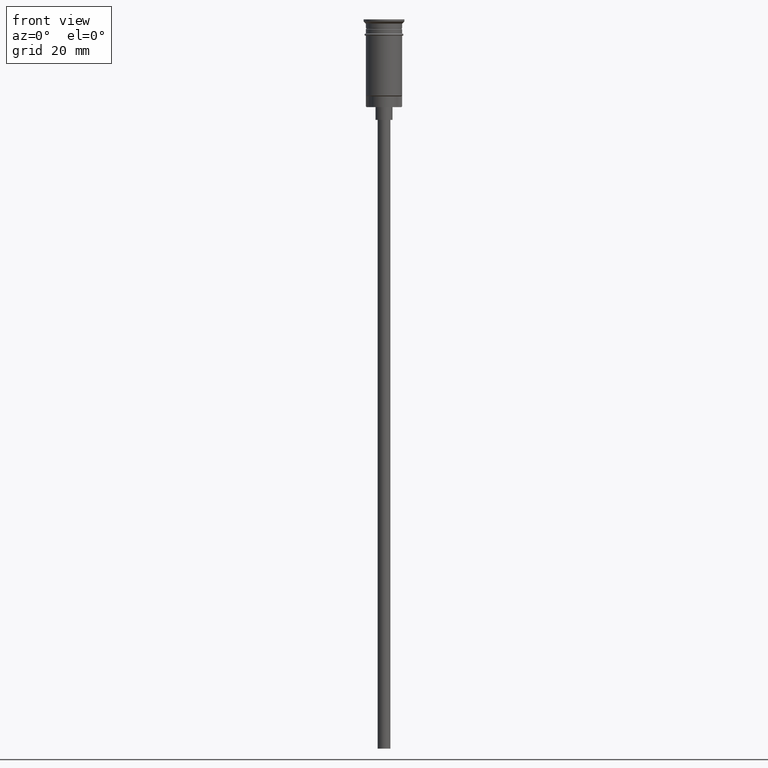
[diagram: clean part render]
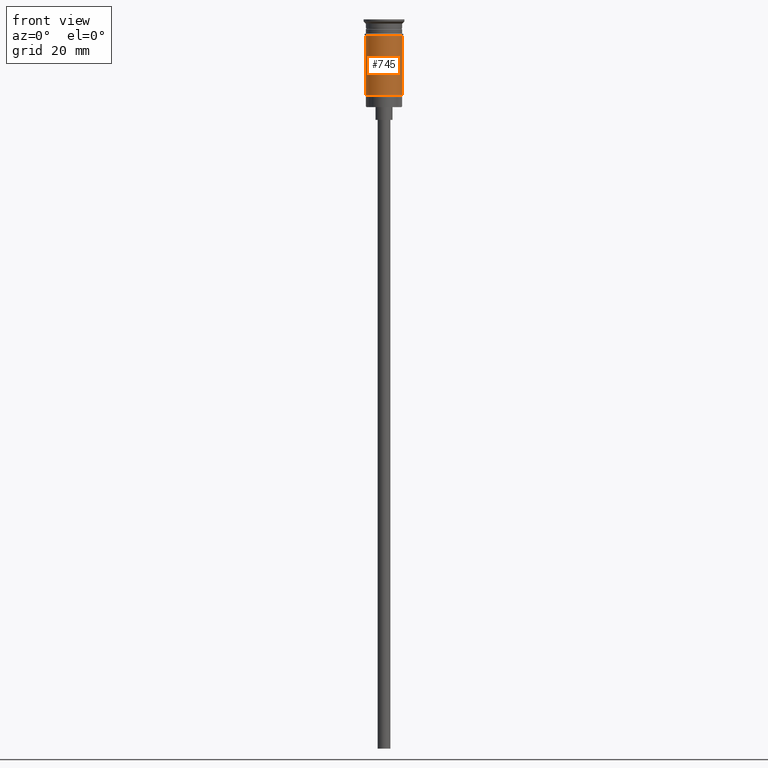
[diagram: same view with one face highlighted and labeled with its STEP entity id]
A machine part, front view. The second image highlights one B-rep face of the part: STEP entity #745.
In plain terms, the highlighted cylindrical surface (edge-blend (fillet) strip) has radius 4.25 mm, axis along (-0, -0, 1).
Its self-contained STEP definition (entity closure, byte-faithful):
#2 = DIRECTION ( 'NONE',  ( -0.000000000000000000, -0.000000000000000000, 1.000000000000000000 ) ) ;
#5 = DIRECTION ( 'NONE',  ( -0.000000000000000000, -0.000000000000000000, 1.000000000000000000 ) ) ;
#16 = AXIS2_PLACEMENT_3D ( 'NONE', #1269, #355, #1024 ) ;
#105 = VERTEX_POINT ( 'NONE', #1572 ) ;
#129 = ORIENTED_EDGE ( 'NONE', *, *, #465, .T. ) ;
#150 = ORIENTED_EDGE ( 'NONE', *, *, #300, .T. ) ;
#170 = CARTESIAN_POINT ( 'NONE',  ( -4.249999999999994671, 0.000000000000000000, -17.80000000000000071 ) ) ;
#282 = CARTESIAN_POINT ( 'NONE',  ( 4.249999999999996447, 0.000000000000000000, 0.000000000000000000 ) ) ;
#300 = EDGE_CURVE ( 'NONE', #1590, #105, #1400, .T. ) ;
#321 = VERTEX_POINT ( 'NONE', #170 ) ;
#327 = CARTESIAN_POINT ( 'NONE',  ( 0.000000000000000000, 0.000000000000000000, -17.80000000000000071 ) ) ;
#347 = CARTESIAN_POINT ( 'NONE',  ( -4.249999999999999112, 5.204748896376250699E-16, -3.799999999999998934 ) ) ;
#355 = DIRECTION ( 'NONE',  ( -0.000000000000000000, -0.000000000000000000, 1.000000000000000000 ) ) ;
#361 = ORIENTED_EDGE ( 'NONE', *, *, #1270, .F. ) ;
#388 = EDGE_LOOP ( 'NONE', ( #361, #129, #150, #581 ) ) ;
#465 = EDGE_CURVE ( 'NONE', #321, #1590, #1046, .T. ) ;
#520 = CARTESIAN_POINT ( 'NONE',  ( -4.249999999999996447, 5.204748896376247741E-16, 0.000000000000000000 ) ) ;
#572 = AXIS2_PLACEMENT_3D ( 'NONE', #327, #1320, #1474 ) ;
#581 = ORIENTED_EDGE ( 'NONE', *, *, #1605, .F. ) ;
#628 = CARTESIAN_POINT ( 'NONE',  ( 0.000000000000000000, 0.000000000000000000, -3.799999999999998934 ) ) ;
#670 = DIRECTION ( 'NONE',  ( -0.000000000000000000, -0.000000000000000000, 1.000000000000000000 ) ) ;
#745 = ADVANCED_FACE ( 'NONE', ( #855 ), #772, .T. ) ;
#772 = CYLINDRICAL_SURFACE ( 'NONE', #16, 4.249999999999996447 ) ;
#803 = LINE ( 'NONE', #520, #1315 ) ;
#837 = AXIS2_PLACEMENT_3D ( 'NONE', #628, #2, #858 ) ;
#855 = FACE_OUTER_BOUND ( 'NONE', #388, .T. ) ;
#858 = DIRECTION ( 'NONE',  ( 1.000000000000000000, 0.000000000000000000, 0.000000000000000000 ) ) ;
#947 = VERTEX_POINT ( 'NONE', #347 ) ;
#1011 = VECTOR ( 'NONE', #5, 1000.000000000000000 ) ;
#1024 = DIRECTION ( 'NONE',  ( 1.000000000000000000, 0.000000000000000000, 0.000000000000000000 ) ) ;
#1046 = CIRCLE ( 'NONE', #572, 4.249999999999996447 ) ;
#1050 = CIRCLE ( 'NONE', #837, 4.249999999999999112 ) ;
#1092 = CARTESIAN_POINT ( 'NONE',  ( 4.249999999999996447, 5.204748896376247741E-16, -17.80000000000000071 ) ) ;
#1269 = CARTESIAN_POINT ( 'NONE',  ( 0.000000000000000000, 0.000000000000000000, 0.000000000000000000 ) ) ;
#1270 = EDGE_CURVE ( 'NONE', #321, #947, #803, .T. ) ;
#1315 = VECTOR ( 'NONE', #670, 1000.000000000000000 ) ;
#1320 = DIRECTION ( 'NONE',  ( -0.000000000000000000, -0.000000000000000000, 1.000000000000000000 ) ) ;
#1400 = LINE ( 'NONE', #282, #1011 ) ;
#1474 = DIRECTION ( 'NONE',  ( -1.000000000000000000, 0.000000000000000000, 0.000000000000000000 ) ) ;
#1572 = CARTESIAN_POINT ( 'NONE',  ( 4.249999999999999112, 0.000000000000000000, -3.799999999999998934 ) ) ;
#1590 = VERTEX_POINT ( 'NONE', #1092 ) ;
#1605 = EDGE_CURVE ( 'NONE', #947, #105, #1050, .T. ) ;